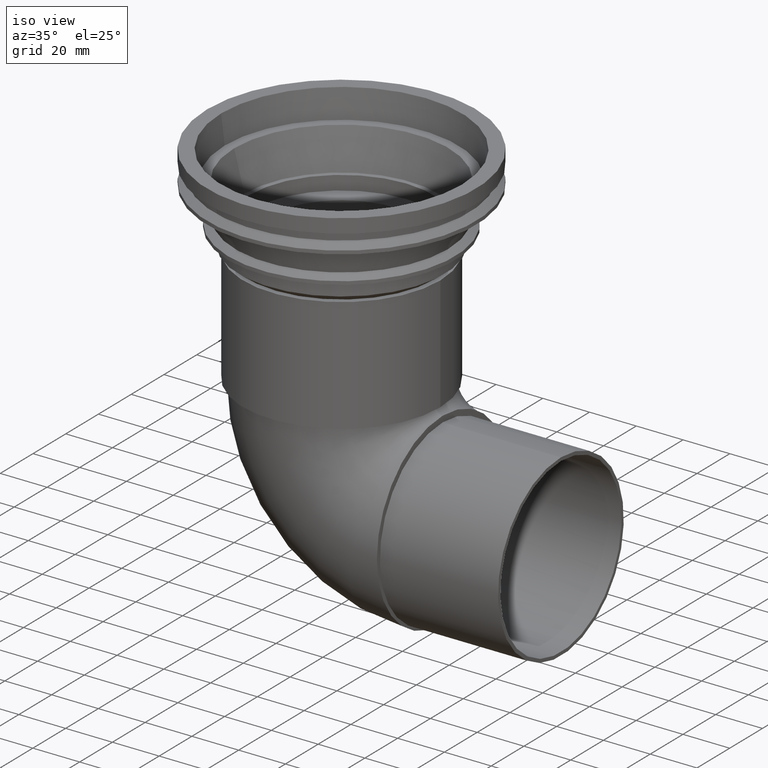
[diagram: clean part render]
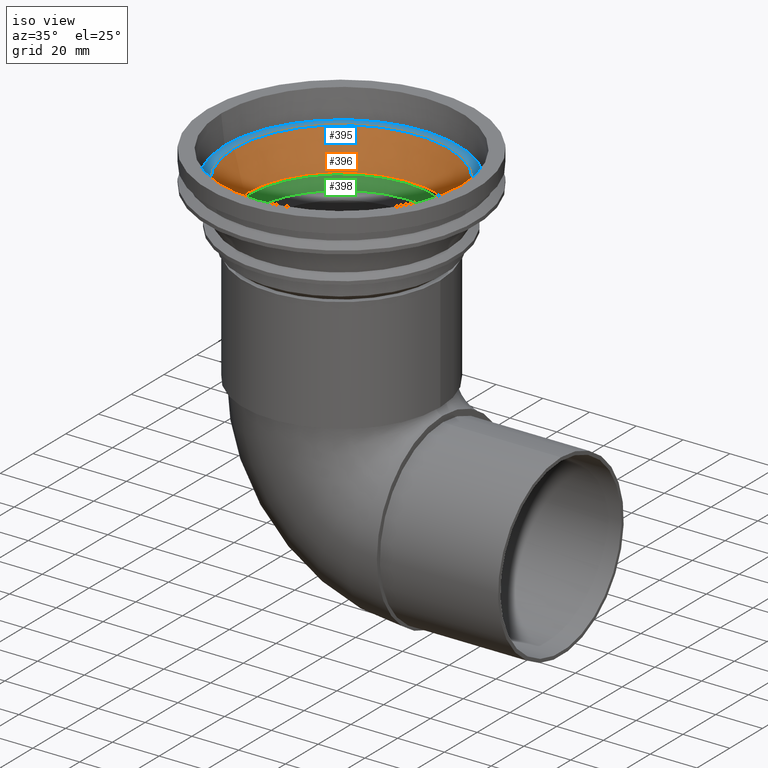
[diagram: same view with three faces highlighted in distinct colors, each labeled with its STEP entity id]
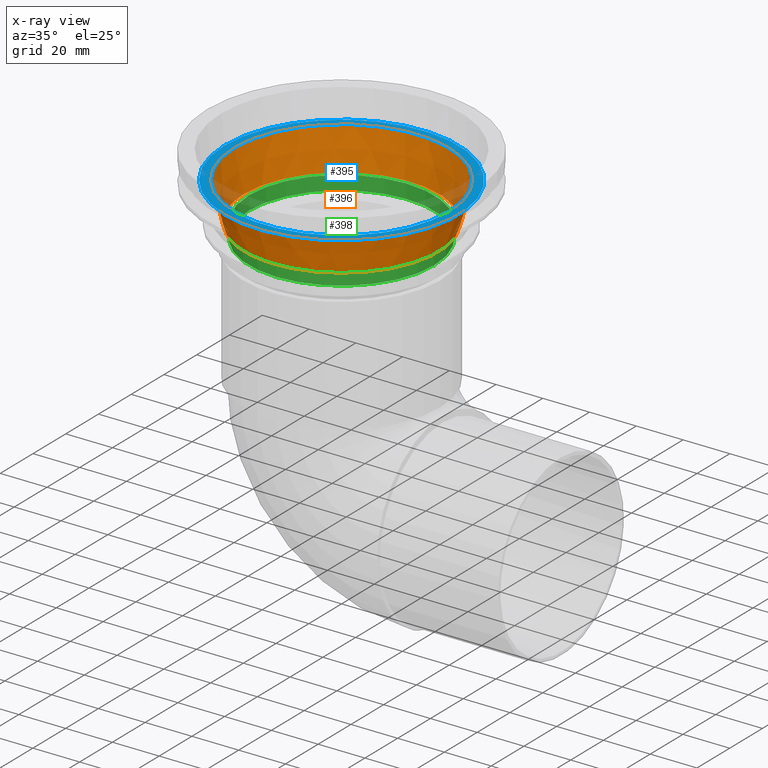
[diagram: x-ray of the same camera — body ghosted, the three highlighted faces saturated]
A machine part, iso view with three faces highlighted in distinct colors.
The next image is the same camera in x-ray (body ghosted, the three faces saturated) — at least one of them is partly hidden behind the body in this view.
Their STEP definitions:

[orange] entity #396 — the highlighted conical surface has half-angle 14.826 deg.
#23=CONICAL_SURFACE('',#456,45.942,0.258762537074751);
#56=ORIENTED_EDGE('',*,*,#128,.T.);
#57=ORIENTED_EDGE('',*,*,#127,.F.);
#127=EDGE_CURVE('',#165,#165,#201,.T.);
#128=EDGE_CURVE('',#166,#166,#202,.T.);
#165=VERTEX_POINT('',#693);
#166=VERTEX_POINT('',#696);
#201=CIRCLE('',#455,45.942);
#202=CIRCLE('',#457,41.588);
#243=EDGE_LOOP('',(#56));
#244=EDGE_LOOP('',(#57));
#315=FACE_BOUND('',#243,.T.);
#316=FACE_BOUND('',#244,.T.);
#396=ADVANCED_FACE('',(#315,#316),#23,.F.);
#455=AXIS2_PLACEMENT_3D('',#692,#548,#549);
#456=AXIS2_PLACEMENT_3D('',#694,#550,#551);
#457=AXIS2_PLACEMENT_3D('',#695,#552,#553);
#548=DIRECTION('',(0.,0.,-1.));
#549=DIRECTION('',(-1.,0.,0.));
#550=DIRECTION('',(0.,0.,1.));
#551=DIRECTION('',(1.,0.,0.));
#552=DIRECTION('',(0.,0.,-1.));
#553=DIRECTION('',(-1.,0.,0.));
#692=CARTESIAN_POINT('',(0.,0.,-12.));
#693=CARTESIAN_POINT('',(-45.942,0.,-12.));
#694=CARTESIAN_POINT('',(0.,0.,-12.));
#695=CARTESIAN_POINT('',(0.,0.,-28.449));
#696=CARTESIAN_POINT('',(-41.588,0.,-28.449));

[blue] entity #395 — the highlighted planar face has unit normal (0, 0, 1).
#54=ORIENTED_EDGE('',*,*,#127,.T.);
#55=ORIENTED_EDGE('',*,*,#126,.F.);
#126=EDGE_CURVE('',#164,#164,#200,.T.);
#127=EDGE_CURVE('',#165,#165,#201,.T.);
#164=VERTEX_POINT('',#690);
#165=VERTEX_POINT('',#693);
#200=CIRCLE('',#453,50.);
#201=CIRCLE('',#455,45.942);
#241=EDGE_LOOP('',(#54));
#242=EDGE_LOOP('',(#55));
#313=FACE_BOUND('',#241,.T.);
#314=FACE_BOUND('',#242,.T.);
#378=PLANE('',#454);
#395=ADVANCED_FACE('',(#313,#314),#378,.T.);
#453=AXIS2_PLACEMENT_3D('',#689,#544,#545);
#454=AXIS2_PLACEMENT_3D('',#691,#546,#547);
#455=AXIS2_PLACEMENT_3D('',#692,#548,#549);
#544=DIRECTION('',(0.,0.,-1.));
#545=DIRECTION('',(-1.,0.,0.));
#546=DIRECTION('',(0.,0.,1.));
#547=DIRECTION('',(1.,0.,0.));
#548=DIRECTION('',(0.,0.,-1.));
#549=DIRECTION('',(-1.,0.,0.));
#689=CARTESIAN_POINT('',(0.,0.,-12.));
#690=CARTESIAN_POINT('',(-50.,0.,-12.));
#691=CARTESIAN_POINT('',(-50.,0.,-12.));
#692=CARTESIAN_POINT('',(0.,0.,-12.));
#693=CARTESIAN_POINT('',(-45.942,0.,-12.));

[green] entity #398 — the highlighted cylindrical surface (bore or boss wall) has radius 39.582 mm, axis along (0, 0, -1).
#32=CYLINDRICAL_SURFACE('',#460,39.582);
#60=ORIENTED_EDGE('',*,*,#130,.T.);
#61=ORIENTED_EDGE('',*,*,#129,.F.);
#129=EDGE_CURVE('',#167,#167,#203,.T.);
#130=EDGE_CURVE('',#168,#168,#204,.T.);
#167=VERTEX_POINT('',#699);
#168=VERTEX_POINT('',#702);
#203=CIRCLE('',#459,39.582);
#204=CIRCLE('',#461,39.582);
#247=EDGE_LOOP('',(#60));
#248=EDGE_LOOP('',(#61));
#319=FACE_BOUND('',#247,.T.);
#320=FACE_BOUND('',#248,.T.);
#398=ADVANCED_FACE('',(#319,#320),#32,.F.);
#459=AXIS2_PLACEMENT_3D('',#698,#556,#557);
#460=AXIS2_PLACEMENT_3D('',#700,#558,#559);
#461=AXIS2_PLACEMENT_3D('',#701,#560,#561);
#556=DIRECTION('',(0.,0.,-1.));
#557=DIRECTION('',(-1.,0.,0.));
#558=DIRECTION('',(0.,0.,-1.));
#559=DIRECTION('',(-1.,0.,0.));
#560=DIRECTION('',(0.,0.,-1.));
#561=DIRECTION('',(-1.,0.,0.));
#698=CARTESIAN_POINT('',(0.,0.,-28.449));
#699=CARTESIAN_POINT('',(-39.582,0.,-28.449));
#700=CARTESIAN_POINT('',(0.,0.,-5.));
#701=CARTESIAN_POINT('',(0.,0.,-34.449));
#702=CARTESIAN_POINT('',(-39.582,0.,-34.449));